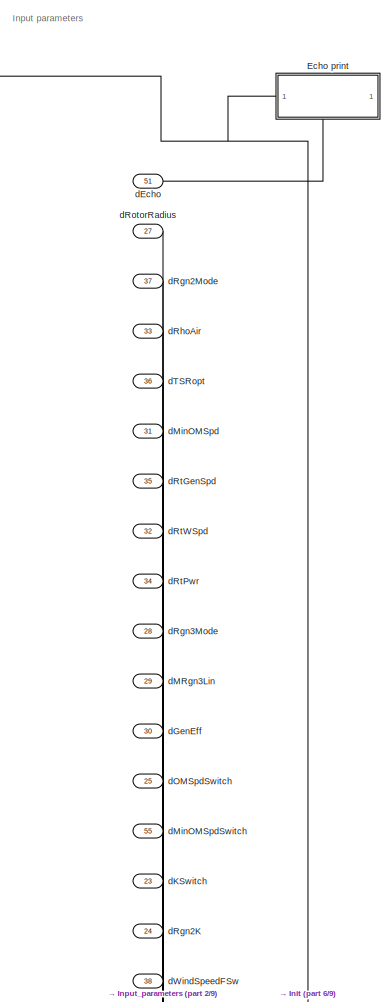
[diagram: root canvas - part 1/9, top left region]
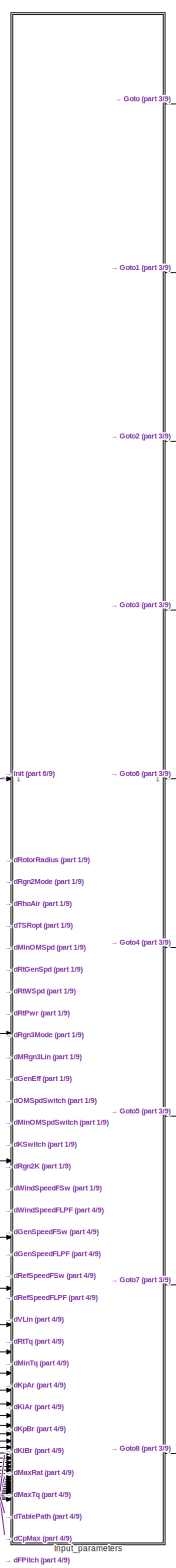
[diagram: root canvas - part 2/9, top left region]
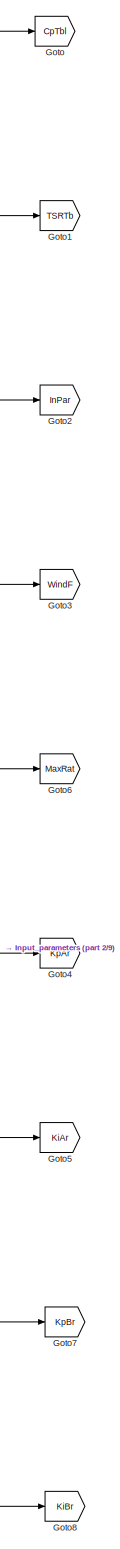
[diagram: root canvas - part 3/9, top center region]
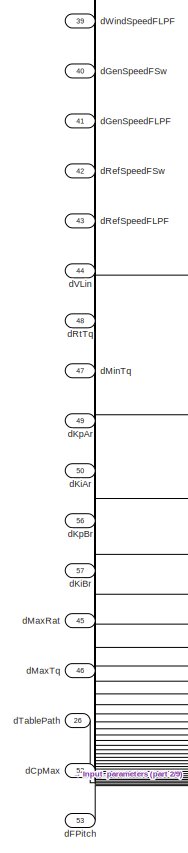
[diagram: root canvas - part 4/9, middle left region]
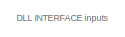
[diagram: root canvas - part 5/9, middle left region]
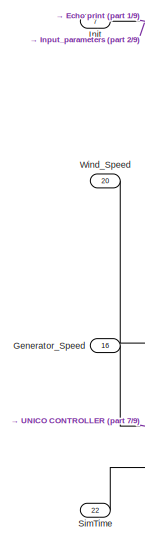
[diagram: root canvas - part 6/9, middle left region]
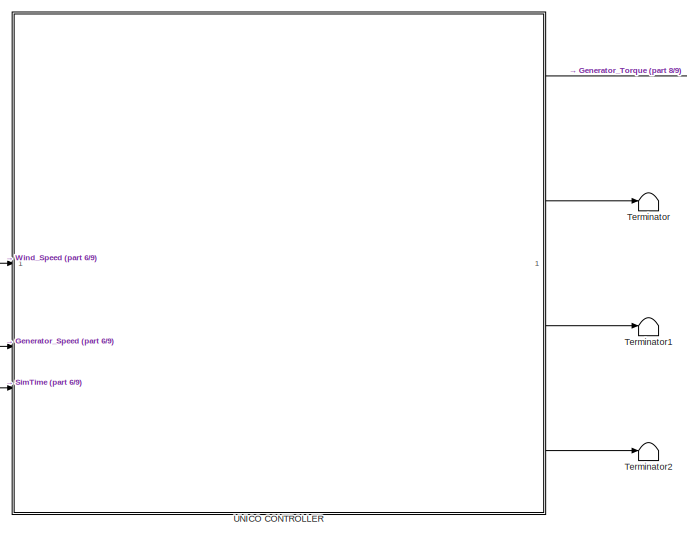
[diagram: root canvas - part 7/9, central region]
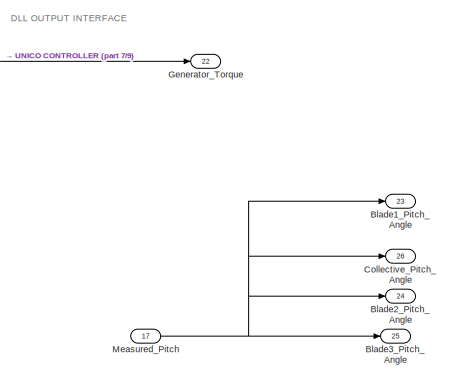
[diagram: root canvas - part 8/9, central region]
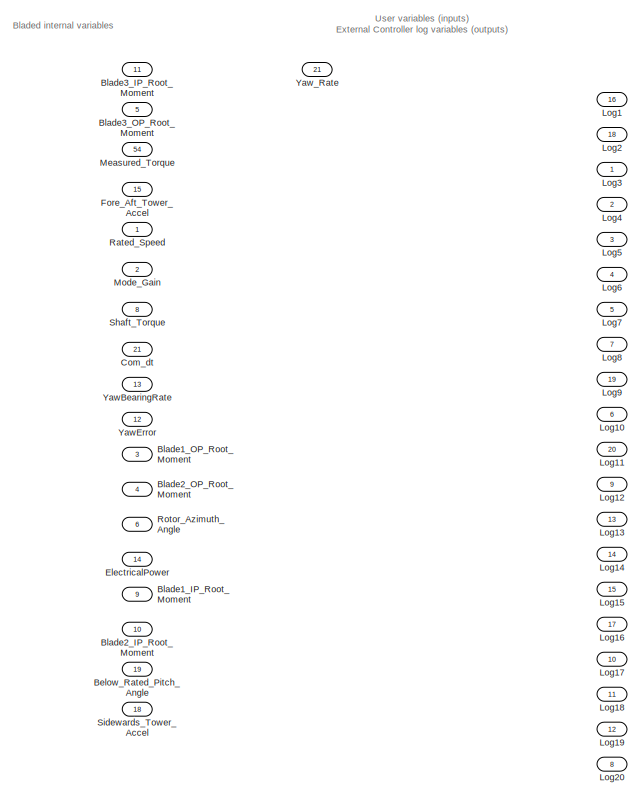
[diagram: root canvas - part 9/9, bottom right region]
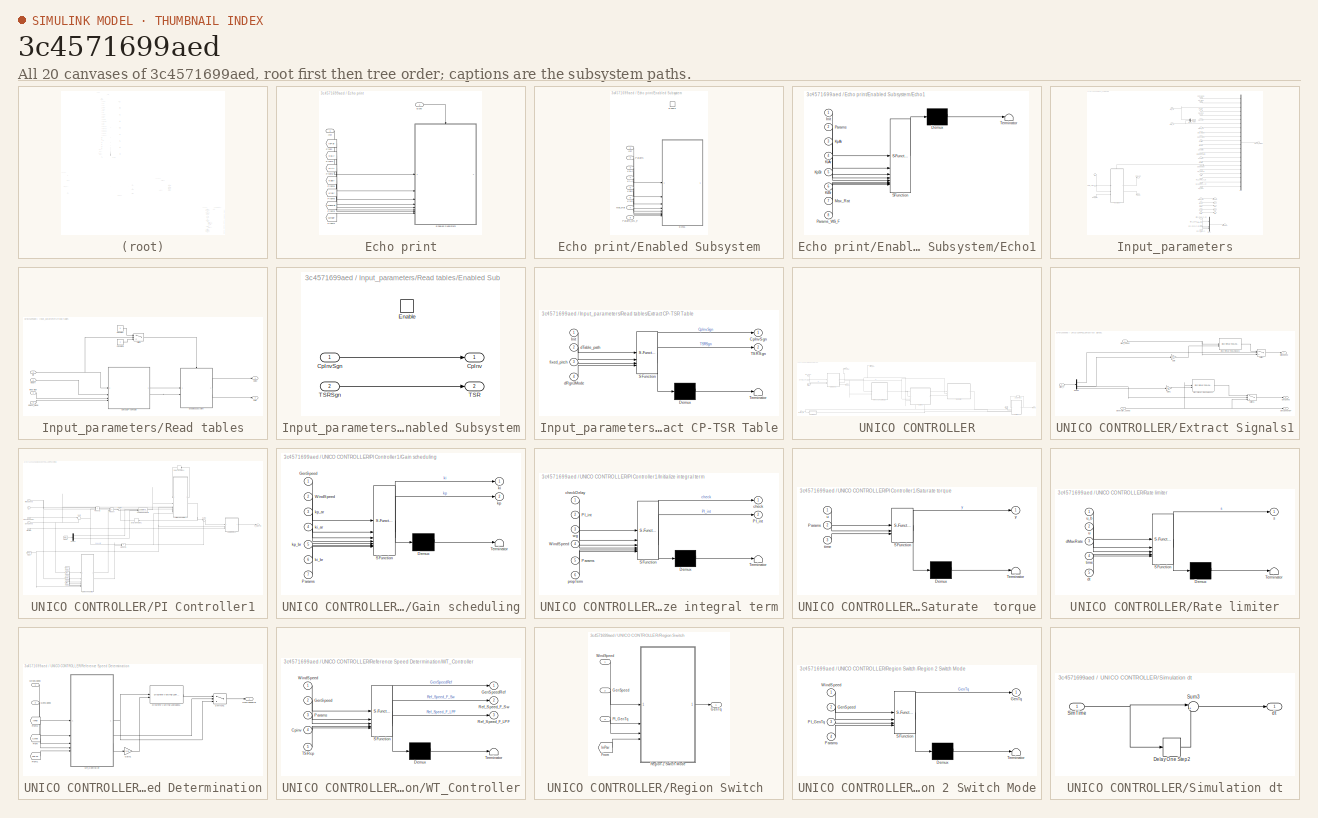
[diagram: thumbnail index - all 20 canvases of the model, root first then tree order]
MODEL slx_3c4571699aed
KIND model
CONFIG AbsTol = auto
CONFIG EnableMultiTasking = off
CONFIG FixedStep = Control.DT
CONFIG MaxStep = auto
CONFIG MinStep = auto
CONFIG RelTol = 1e-3
CONFIG SampleTimeConstraint = Unconstrained
CONFIG SolverName = FixedStepDiscrete
CONFIG StartTime = 0.0
CONFIG StopTime = inf
BLOCK [Inport] Below_Rated_Pitch_Angle
  Port = 19
  PortDimensions = 1
  SignalType = real
BLOCK [Inport] Blade1_IP_Root_Moment
  Port = 9
  PortDimensions = 1
  SignalType = real
  VarSizeSig = No
BLOCK [Inport] Blade1_OP_Root_Moment
  Port = 3
  PortDimensions = 1
  SignalType = real
  VarSizeSig = No
BLOCK [Outport] Blade1_Pitch_Angle
  Port = 23
  PortDimensions = 1
  SignalType = real
  VarSizeSig = No
  VectorParamsAs1DForOutWhenUnconnected = off
BLOCK [Inport] Blade2_IP_Root_Moment
  Port = 10
  PortDimensions = 1
  SignalType = real
  VarSizeSig = No
BLOCK [Inport] Blade2_OP_Root_Moment
  Port = 4
  PortDimensions = 1
  SignalType = real
  VarSizeSig = No
BLOCK [Outport] Blade2_Pitch_Angle
  Port = 24
  PortDimensions = 1
  SignalType = real
  VarSizeSig = No
  VectorParamsAs1DForOutWhenUnconnected = off
BLOCK [Inport] Blade3_IP_Root_Moment
  Port = 11
  PortDimensions = 1
  SignalType = real
  VarSizeSig = No
BLOCK [Inport] Blade3_OP_Root_Moment
  Port = 5
  PortDimensions = 1
  SignalType = real
  VarSizeSig = No
BLOCK [Outport] Blade3_Pitch_Angle
  Port = 25
  PortDimensions = 1
  SignalType = real
  VarSizeSig = No
  VectorParamsAs1DForOutWhenUnconnected = off
BLOCK [Outport] Collective_Pitch_Angle
  Port = 26
  PortDimensions = 1
  SignalType = real
  VarSizeSig = No
  VectorParamsAs1DForOutWhenUnconnected = off
BLOCK [Inport] Com_dt
  Port = 21
  PortDimensions = 1
  SignalType = real
BLOCK [SubSystem] Echo print
  NameLocation = top
  PortSchema = {"entries":[{"content":{"sides":[{"content":{"connectorIds":["In1"]},"type":"ConnectorPlacement.EquallySpacedRectSide","uuid":"a7404841-4279-4901-8e4b-4d9f651fd70d"},{"content":{"side":"RIGHT"},"type":"ConnectorPlacement.EquallySpacedRectSide","uuid":"c083252d-994d-448b-85dd-b05fa098362a"},{"content":{"connectorIds":["In2"],"side":"TOP"},"type":"ConnectorPlacement.EquallySpacedRectSide","uuid":"21...<+221ch>
BLOCK [Inport] Echo print/Echo
  Port = 2
BLOCK [SubSystem] Echo print/Enabled Subsystem
  LibrarySourceBlock = hdlsllib/Ports &\nSubsystems/Enabled\nSubsystem
  TreatAsAtomicUnit = on
BLOCK [SubSystem] Echo print/Enabled Subsystem/Echo1
  ErrorFcn = Stateflow.Translate.translate
  LibrarySourceBlock = simulink/User-Defined\nFunctions/MATLAB Function
  PermitHierarchicalResolution = ExplicitOnly
  SFBlockType = MATLAB Function
  TreatAsAtomicUnit = on
BLOCK [Demux] Echo print/Enabled Subsystem/Echo1/ Demux 
  Outputs = 1
BLOCK [S-Function] Echo print/Enabled Subsystem/Echo1/ SFunction 
  EnableBusSupport = on
  FunctionName = sf_sfun
  PortCounts = [8 1]
  SFcnIsStateOwnerBlock = off
  SFunctionDeploymentMode = off
  Tag = Stateflow S-Function 8
BLOCK [Terminator] Echo print/Enabled Subsystem/Echo1/ Terminator 
BLOCK [Inport] Echo print/Enabled Subsystem/Echo1/Init
BLOCK [Inport] Echo print/Enabled Subsystem/Echo1/KiAr
  Port = 4
BLOCK [Inport] Echo print/Enabled Subsystem/Echo1/KiBr
  Port = 6
BLOCK [Inport] Echo print/Enabled Subsystem/Echo1/KpAr
  Port = 3
BLOCK [Inport] Echo print/Enabled Subsystem/Echo1/KpBr
  Port = 5
BLOCK [Inport] Echo print/Enabled Subsystem/Echo1/Max_Rat
  Port = 7
BLOCK [Inport] Echo print/Enabled Subsystem/Echo1/Params
  Port = 2
BLOCK [Inport] Echo print/Enabled Subsystem/Echo1/Params_WS_F
  Port = 8
BLOCK [EnablePort] Echo print/Enabled Subsystem/Enable
BLOCK [Inport] Echo print/Enabled Subsystem/Init
BLOCK [Inport] Echo print/Enabled Subsystem/KiAr
  Port = 4
BLOCK [Inport] Echo print/Enabled Subsystem/KiBr
  Port = 6
BLOCK [Inport] Echo print/Enabled Subsystem/KpAr
  Port = 3
BLOCK [Inport] Echo print/Enabled Subsystem/KpBr
  Port = 5
BLOCK [Inport] Echo print/Enabled Subsystem/Max_Rat
  Port = 7
BLOCK [Inport] Echo print/Enabled Subsystem/Params
  Port = 2
BLOCK [Inport] Echo print/Enabled Subsystem/Params_WS_F
  Port = 8
BLOCK [From] Echo print/From
  GotoTag = InPar
  TagVisibility = global
BLOCK [From] Echo print/From1
  GotoTag = KpAr
  TagVisibility = global
BLOCK [From] Echo print/From2
  GotoTag = KiAr
  TagVisibility = global
BLOCK [From] Echo print/From3
  GotoTag = MaxRat
  TagVisibility = global
BLOCK [From] Echo print/From4
  GotoTag = WindF
  TagVisibility = global
BLOCK [From] Echo print/From5
  GotoTag = KpBr
  TagVisibility = global
BLOCK [From] Echo print/From6
  GotoTag = KiBr
  TagVisibility = global
BLOCK [Inport] Echo print/Init
BLOCK [Inport] ElectricalPower
  Port = 14
  PortDimensions = 1
  SignalType = real
BLOCK [Inport] Fore_Aft_Tower_Accel
  Port = 15
  PortDimensions = 1
  SignalType = real
BLOCK [Inport] Generator_Speed
  Port = 16
  PortDimensions = 1
  SignalType = real
BLOCK [Outport] Generator_Torque
  Port = 22
  PortDimensions = 1
  SignalType = real
  VectorParamsAs1DForOutWhenUnconnected = off
BLOCK [Goto] Goto
  GotoTag = CpTbl
  TagVisibility = global
BLOCK [Goto] Goto1
  GotoTag = TSRTb
  TagVisibility = global
BLOCK [Goto] Goto2
  GotoTag = InPar
  TagVisibility = global
BLOCK [Goto] Goto3
  GotoTag = WindF
  TagVisibility = global
BLOCK [Goto] Goto4
  GotoTag = KpAr
  TagVisibility = global
BLOCK [Goto] Goto5
  GotoTag = KiAr
  TagVisibility = global
BLOCK [Goto] Goto6
  GotoTag = MaxRat
  TagVisibility = global
BLOCK [Goto] Goto7
  GotoTag = KpBr
  TagVisibility = global
BLOCK [Goto] Goto8
  GotoTag = KiBr
  TagVisibility = global
BLOCK [Inport] Init
  Port = 7
  PortDimensions = 1
  SignalType = real
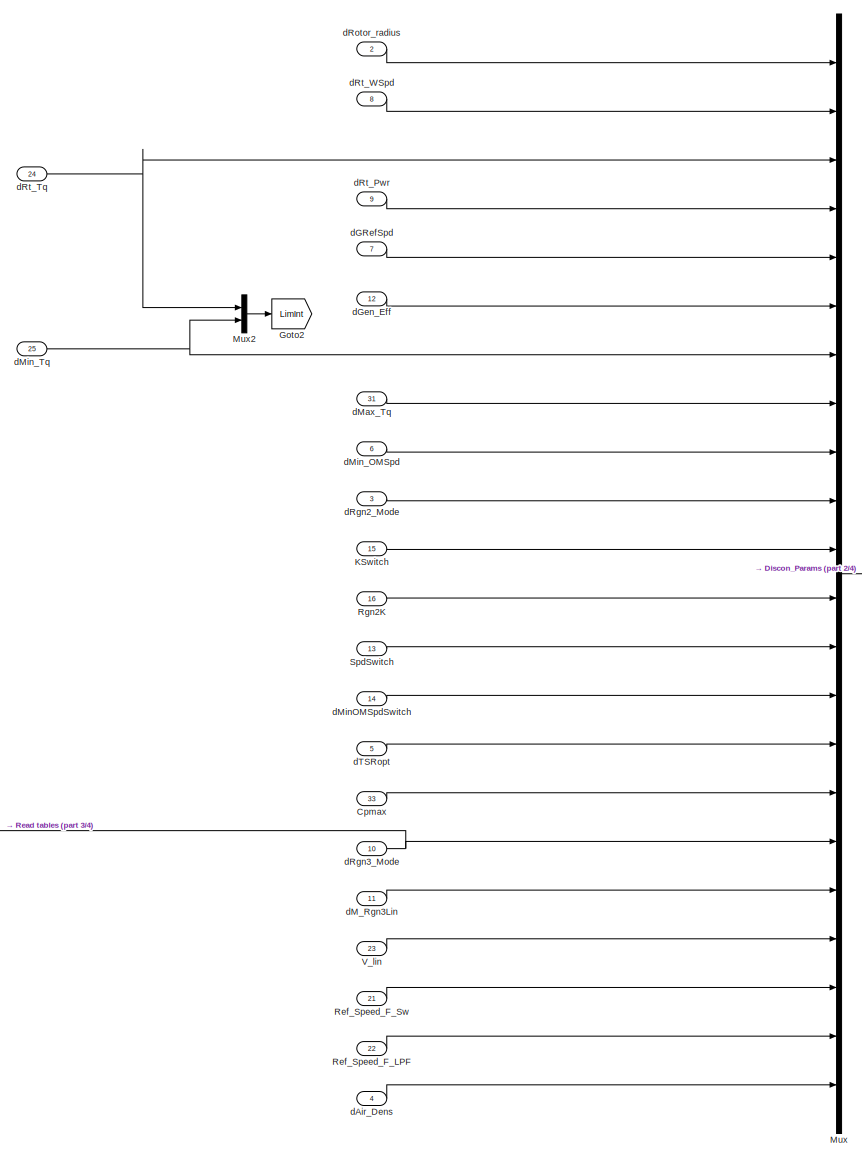
[diagram: Input_parameters - part 1/4, middle right region]
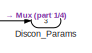
[diagram: Input_parameters - part 2/4, middle right region]
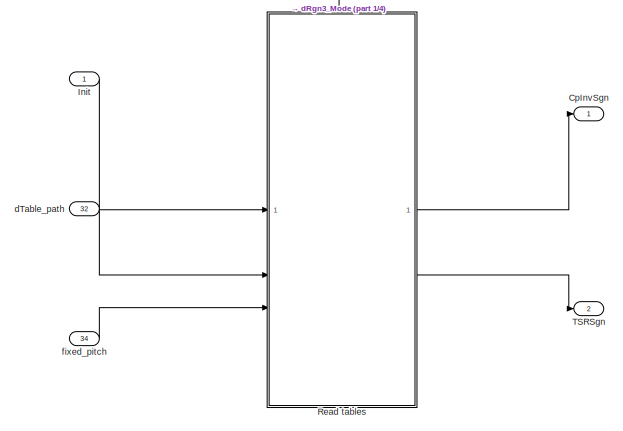
[diagram: Input_parameters - part 3/4, middle left region]
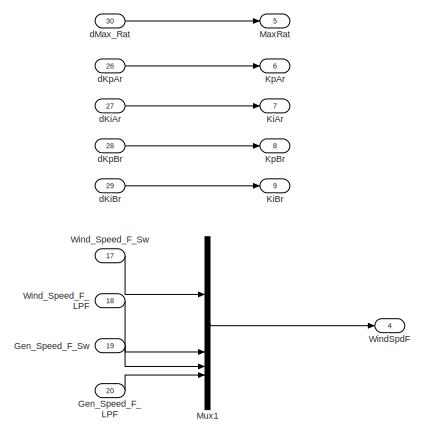
[diagram: Input_parameters - part 4/4, bottom right region]
BLOCK [SubSystem] Input_parameters
BLOCK [Outport] Input_parameters/CpInvSgn
BLOCK [Inport] Input_parameters/Cpmax
  Port = 33
BLOCK [Outport] Input_parameters/Discon_Params
  Port = 3
BLOCK [Inport] Input_parameters/Gen_Speed_F_LPF
  Port = 20
BLOCK [Inport] Input_parameters/Gen_Speed_F_Sw
  Port = 19
BLOCK [Goto] Input_parameters/Goto2
  GotoTag = LimInt
  TagVisibility = global
BLOCK [Inport] Input_parameters/Init
BLOCK [Inport] Input_parameters/KSwitch
  Port = 15
BLOCK [Outport] Input_parameters/KiAr
  Port = 7
BLOCK [Outport] Input_parameters/KiBr
  Port = 9
BLOCK [Outport] Input_parameters/KpAr
  Port = 6
BLOCK [Outport] Input_parameters/KpBr
  Port = 8
BLOCK [Outport] Input_parameters/MaxRat
  Port = 5
BLOCK [Mux] Input_parameters/Mux
  DisplayOption = bar
  Inputs = 22
BLOCK [Mux] Input_parameters/Mux1
  DisplayOption = bar
BLOCK [Mux] Input_parameters/Mux2
  DisplayOption = bar
  Inputs = 2
BLOCK [SubSystem] Input_parameters/Read tables
  LibrarySourceBlock = hdlsllib/Ports &\nSubsystems/Enabled\nSubsystem
  PortSchema = {"entries":[{"content":{"sides":[{"content":{"connectorIds":["In1","In2","In3"]},"type":"ConnectorPlacement.EquallySpacedRectSide","uuid":"70dc056e-f44f-410f-81b8-4fc8ee875686"},{"content":{"connectorIds":["Out1","Out2"],"side":"RIGHT"},"type":"ConnectorPlacement.EquallySpacedRectSide","uuid":"c55ab53e-c552-464c-9578-781d0167a6cb"},{"content":{"connectorIds":["In4"],"side":"TOP"},"type":"Connector...<+264ch>
  TreatAsAtomicUnit = on
BLOCK [Constant] Input_parameters/Read tables/Constant
  Value = 0
BLOCK [Constant] Input_parameters/Read tables/Constant1
  SampleTime = -1
BLOCK [Outport] Input_parameters/Read tables/CpInv
BLOCK [SubSystem] Input_parameters/Read tables/Enabled Subsystem
  LibrarySourceBlock = hdlsllib/Ports &\nSubsystems/Enabled\nSubsystem
  TreatAsAtomicUnit = on
BLOCK [Outport] Input_parameters/Read tables/Enabled Subsystem/CpInv
BLOCK [Inport] Input_parameters/Read tables/Enabled Subsystem/CpInvSgn
BLOCK [EnablePort] Input_parameters/Read tables/Enabled Subsystem/Enable
BLOCK [Outport] Input_parameters/Read tables/Enabled Subsystem/TSR
  Port = 2
BLOCK [Inport] Input_parameters/Read tables/Enabled Subsystem/TSRSgn
  Port = 2
BLOCK [SubSystem] Input_parameters/Read tables/Extract CP-TSR Table
  ErrorFcn = Stateflow.Translate.translate
  LibrarySourceBlock = simulink/User-Defined\nFunctions/MATLAB Function
  PermitHierarchicalResolution = ExplicitOnly
  SFBlockType = MATLAB Function
  TreatAsAtomicUnit = on
BLOCK [Demux] Input_parameters/Read tables/Extract CP-TSR Table/ Demux 
  Outputs = 1
BLOCK [S-Function] Input_parameters/Read tables/Extract CP-TSR Table/ SFunction 
  EnableBusSupport = on
  FunctionName = sf_sfun
  PortCounts = [4 3]
  SFcnIsStateOwnerBlock = off
  SFunctionDeploymentMode = off
  Tag = Stateflow S-Function 12
BLOCK [Terminator] Input_parameters/Read tables/Extract CP-TSR Table/ Terminator 
BLOCK [Outport] Input_parameters/Read tables/Extract CP-TSR Table/CpInvSgn
BLOCK [Inport] Input_parameters/Read tables/Extract CP-TSR Table/Init
BLOCK [Outport] Input_parameters/Read tables/Extract CP-TSR Table/TSRSgn
  Port = 2
BLOCK [Inport] Input_parameters/Read tables/Extract CP-TSR Table/dRgn3Mode
  Port = 4
BLOCK [Inport] Input_parameters/Read tables/Extract CP-TSR Table/dTable_path
  Port = 2
BLOCK [Inport] Input_parameters/Read tables/Extract CP-TSR Table/fixed_pitch
  Port = 3
BLOCK [Inport] Input_parameters/Read tables/Init
BLOCK [Inport] Input_parameters/Read tables/Inport
  Port = 2
BLOCK [Switch] Input_parameters/Read tables/Switch
  Criteria = u2 ~= 0
  InputSameDT = off
  SaturateOnIntegerOverflow = off
BLOCK [Outport] Input_parameters/Read tables/TSR
  Port = 2
BLOCK [Inport] Input_parameters/Read tables/dRgn3_Mode
  Port = 4
BLOCK [Inport] Input_parameters/Read tables/fixed-pitch
  Port = 3
BLOCK [Inport] Input_parameters/Ref_Speed_F_LPF
  Port = 22
BLOCK [Inport] Input_parameters/Ref_Speed_F_Sw
  Port = 21
BLOCK [Inport] Input_parameters/Rgn2K
  Port = 16
BLOCK [Inport] Input_parameters/SpdSwitch
  Port = 13
BLOCK [Outport] Input_parameters/TSRSgn
  Port = 2
BLOCK [Inport] Input_parameters/V_lin
  Port = 23
BLOCK [Outport] Input_parameters/WindSpdF
  Port = 4
BLOCK [Inport] Input_parameters/Wind_Speed_F_LPF
  Port = 18
BLOCK [Inport] Input_parameters/Wind_Speed_F_Sw
  Port = 17
BLOCK [Inport] Input_parameters/dAir_Dens
  Port = 4
BLOCK [Inport] Input_parameters/dGRefSpd
  Port = 7
BLOCK [Inport] Input_parameters/dGen_Eff
  Port = 12
BLOCK [Inport] Input_parameters/dKiAr
  Port = 27
BLOCK [Inport] Input_parameters/dKiBr
  Port = 29
BLOCK [Inport] Input_parameters/dKpAr
  Port = 26
BLOCK [Inport] Input_parameters/dKpBr
  Port = 28
BLOCK [Inport] Input_parameters/dM_Rgn3Lin
  Port = 11
BLOCK [Inport] Input_parameters/dMax_Rat
  Port = 30
BLOCK [Inport] Input_parameters/dMax_Tq
  Port = 31
BLOCK [Inport] Input_parameters/dMinOMSpdSwitch
  Port = 14
BLOCK [Inport] Input_parameters/dMin_OMSpd
  Port = 6
BLOCK [Inport] Input_parameters/dMin_Tq
  Port = 25
BLOCK [Inport] Input_parameters/dRgn2_Mode
  Port = 3
BLOCK [Inport] Input_parameters/dRgn3_Mode
  Port = 10
BLOCK [Inport] Input_parameters/dRotor_radius
  Port = 2
BLOCK [Inport] Input_parameters/dRt_Pwr
  Port = 9
BLOCK [Inport] Input_parameters/dRt_Tq
  Port = 24
BLOCK [Inport] Input_parameters/dRt_WSpd
  Port = 8
BLOCK [Inport] Input_parameters/dTSRopt
  Port = 5
BLOCK [Inport] Input_parameters/dTable_path
  Port = 32
BLOCK [Inport] Input_parameters/fixed_pitch
  Port = 34
BLOCK [Outport] Log1
  Port = 16
  PortDimensions = 1
  SignalType = real
  VarSizeSig = No
  VectorParamsAs1DForOutWhenUnconnected = off
BLOCK [Outport] Log10
  Port = 6
  PortDimensions = 1
  SignalType = real
  VarSizeSig = No
  VectorParamsAs1DForOutWhenUnconnected = off
BLOCK [Outport] Log11
  Port = 20
  PortDimensions = 1
  SignalType = real
  VarSizeSig = No
  VectorParamsAs1DForOutWhenUnconnected = off
BLOCK [Outport] Log12
  Port = 9
  PortDimensions = 1
  SignalType = real
  VarSizeSig = No
  VectorParamsAs1DForOutWhenUnconnected = off
BLOCK [Outport] Log13
  Port = 13
  PortDimensions = 1
  SignalType = real
  VarSizeSig = No
  VectorParamsAs1DForOutWhenUnconnected = off
BLOCK [Outport] Log14
  Port = 14
  PortDimensions = 1
  SignalType = real
  VarSizeSig = No
  VectorParamsAs1DForOutWhenUnconnected = off
BLOCK [Outport] Log15
  Port = 15
  PortDimensions = 1
  SignalType = real
  VarSizeSig = No
  VectorParamsAs1DForOutWhenUnconnected = off
BLOCK [Outport] Log16
  Port = 17
  PortDimensions = 1
  SignalType = real
  VarSizeSig = No
  VectorParamsAs1DForOutWhenUnconnected = off
BLOCK [Outport] Log17
  Port = 10
  PortDimensions = 1
  SignalType = real
  VarSizeSig = No
  VectorParamsAs1DForOutWhenUnconnected = off
BLOCK [Outport] Log18
  Port = 11
  PortDimensions = 1
  SignalType = real
  VarSizeSig = No
  VectorParamsAs1DForOutWhenUnconnected = off
BLOCK [Outport] Log19
  Port = 12
  PortDimensions = 1
  SignalType = real
  VarSizeSig = No
  VectorParamsAs1DForOutWhenUnconnected = off
BLOCK [Outport] Log2
  Port = 18
  PortDimensions = 1
  SignalType = real
  VarSizeSig = No
  VectorParamsAs1DForOutWhenUnconnected = off
BLOCK [Outport] Log20
  Port = 8
  PortDimensions = 1
  SignalType = real
  VarSizeSig = No
  VectorParamsAs1DForOutWhenUnconnected = off
BLOCK [Outport] Log3
  PortDimensions = 1
  SignalType = real
  VarSizeSig = No
  VectorParamsAs1DForOutWhenUnconnected = off
BLOCK [Outport] Log4
  Port = 2
  PortDimensions = 1
  SignalType = real
  VarSizeSig = No
  VectorParamsAs1DForOutWhenUnconnected = off
BLOCK [Outport] Log5
  Port = 3
  PortDimensions = 1
  SignalType = real
  VarSizeSig = No
  VectorParamsAs1DForOutWhenUnconnected = off
BLOCK [Outport] Log6
  Port = 4
  PortDimensions = 1
  SignalType = real
  VarSizeSig = No
  VectorParamsAs1DForOutWhenUnconnected = off
BLOCK [Outport] Log7
  Port = 5
  PortDimensions = 1
  SignalType = real
  VarSizeSig = No
  VectorParamsAs1DForOutWhenUnconnected = off
BLOCK [Outport] Log8
  Port = 7
  PortDimensions = 1
  SignalType = real
  VarSizeSig = No
  VectorParamsAs1DForOutWhenUnconnected = off
BLOCK [Outport] Log9
  Port = 19
  PortDimensions = 1
  SignalType = real
  VarSizeSig = No
  VectorParamsAs1DForOutWhenUnconnected = off
BLOCK [Inport] Measured_Pitch
  Port = 17
  PortDimensions = 1
  SignalType = real
BLOCK [Inport] Measured_Torque
  Port = 54
BLOCK [Inport] Mode_Gain
  Port = 2
  PortDimensions = 1
  SignalType = real
BLOCK [Inport] Rated_Speed
  PortDimensions = 1
  SignalType = real
BLOCK [Inport] Rotor_Azimuth_Angle
  Port = 6
  PortDimensions = 1
  SignalType = real
  VarSizeSig = No
BLOCK [Inport] Shaft_Torque
  Port = 8
  PortDimensions = 1
  SignalType = real
BLOCK [Inport] Sidewards_Tower_Accel
  Port = 18
  PortDimensions = 1
  SignalType = real
BLOCK [Inport] SimTime
  Port = 22
BLOCK [Terminator] Terminator
BLOCK [Terminator] Terminator1
BLOCK [Terminator] Terminator2
BLOCK [SubSystem] UNICO CONTROLLER
BLOCK [Delay] UNICO CONTROLLER/Delay One Step3
  DelayLength = 1
  InputPortMap = u0
BLOCK [SubSystem] UNICO CONTROLLER/Extract Signals1
  TreatAsAtomicUnit = on
BLOCK [Demux] UNICO CONTROLLER/Extract Signals1/Demux
BLOCK [Reference] UNICO CONTROLLER/Extract Signals1/Discrete Varying Lowpass  REF=cstblocks/Linear Parameter Varying/Discrete Varying Lowpass
  SourceBlock = cstblocks/Linear Parameter Varying/Discrete Varying Lowpass
  SourceType = Discrete Varying Lowpass
BLOCK [Reference] UNICO CONTROLLER/Extract Signals1/Discrete Varying Lowpass1  REF=cstblocks/Linear Parameter Varying/Discrete Varying Lowpass
  SourceBlock = cstblocks/Linear Parameter Varying/Discrete Varying Lowpass
  SourceType = Discrete Varying Lowpass
BLOCK [Gain] UNICO CONTROLLER/Extract Signals1/Gain
  Gain = 2*pi
BLOCK [Gain] UNICO CONTROLLER/Extract Signals1/Gain1
  Gain = 2*pi
BLOCK [Outport] UNICO CONTROLLER/Extract Signals1/GenSpeed
  Port = 2
  VectorParamsAs1DForOutWhenUnconnected = off
BLOCK [Outport] UNICO CONTROLLER/Extract Signals1/GenSpeedNoF
  Port = 3
BLOCK [Inport] UNICO CONTROLLER/Extract Signals1/Generator_speed
  Port = 2
BLOCK [Switch] UNICO CONTROLLER/Extract Signals1/Switch
  Criteria = u2 ~= 0
  InputSameDT = off
  SaturateOnIntegerOverflow = off
BLOCK [Switch] UNICO CONTROLLER/Extract Signals1/Switch1
  Criteria = u2 ~= 0
  InputSameDT = off
  SaturateOnIntegerOverflow = off
BLOCK [Outport] UNICO CONTROLLER/Extract Signals1/WindSpeed
  VectorParamsAs1DForOutWhenUnconnected = off
BLOCK [Inport] UNICO CONTROLLER/Extract Signals1/Wind_F
  Port = 3
BLOCK [Inport] UNICO CONTROLLER/Extract Signals1/Wind_speed
BLOCK [From] UNICO CONTROLLER/From
  GotoTag = MaxRat
  TagVisibility = global
BLOCK [From] UNICO CONTROLLER/From1
  GotoTag = WindF
  TagVisibility = global
BLOCK [Outport] UNICO CONTROLLER/GenSpd
  Port = 2
BLOCK [Outport] UNICO CONTROLLER/GenTq
BLOCK [Outport] UNICO CONTROLLER/Gen_speedF
  Port = 4
BLOCK [Inport] UNICO CONTROLLER/Generator_speed
  Port = 2
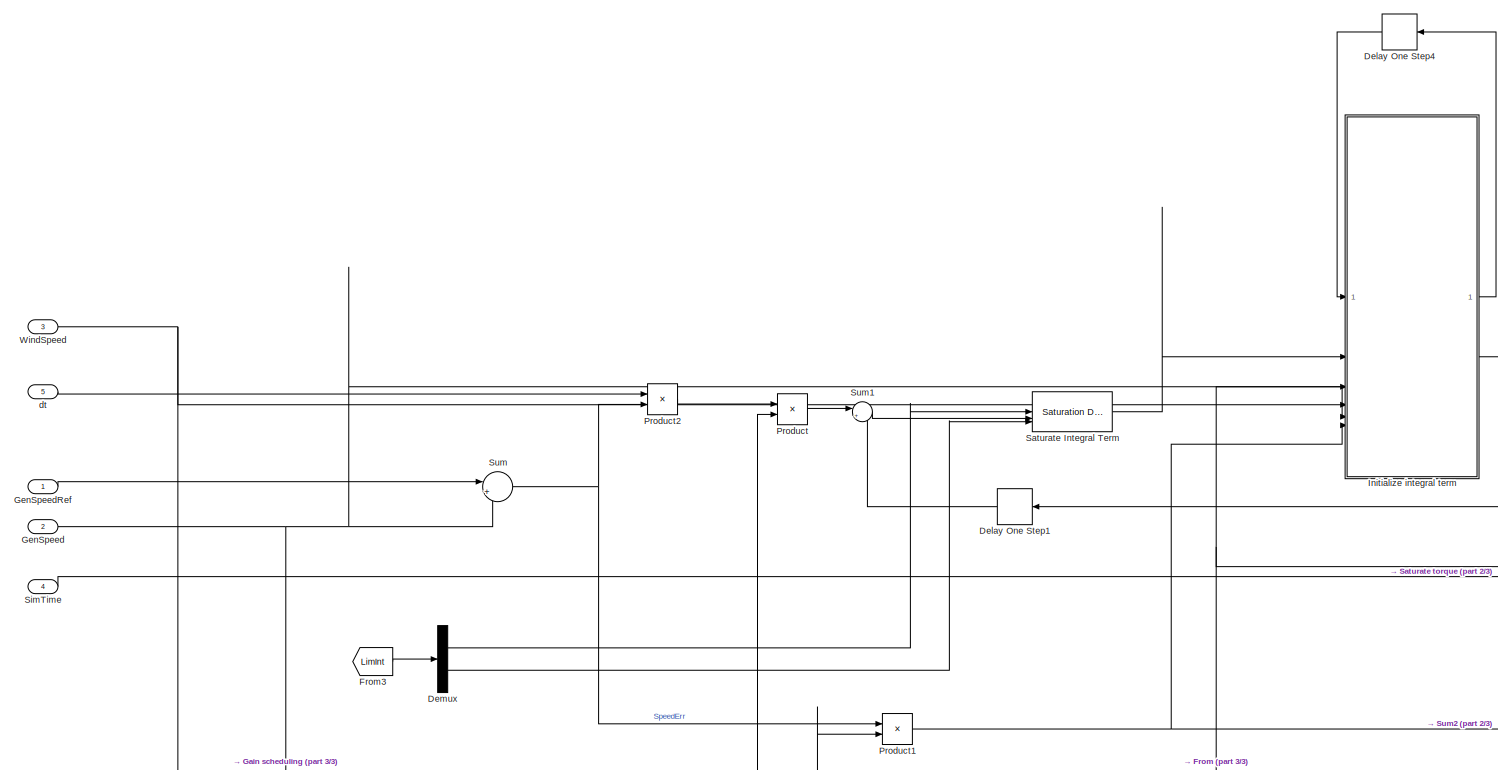
[diagram: UNICO CONTROLLER/PI Controller1 - part 1/3, central region]
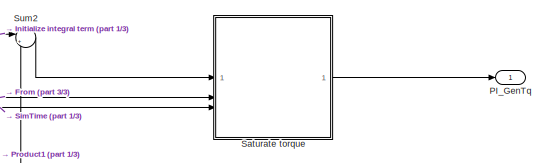
[diagram: UNICO CONTROLLER/PI Controller1 - part 2/3, middle right region]
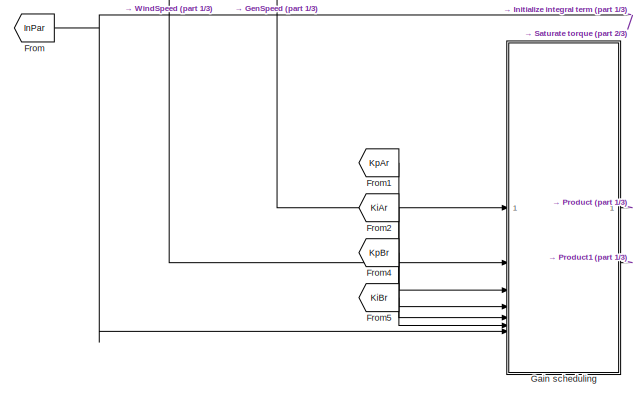
[diagram: UNICO CONTROLLER/PI Controller1 - part 3/3, bottom left region]
BLOCK [SubSystem] UNICO CONTROLLER/PI Controller1
  PortSchema = {"entries":[{"content":{"sides":[{"content":{"connectorIds":["In1","In2","In3"]},"type":"ConnectorPlacement.EquallySpacedRectSide","uuid":"bcfbec15-b5a6-4167-802a-412b097f843a"},{"content":{"connectorIds":["Out1"],"side":"RIGHT"},"type":"ConnectorPlacement.EquallySpacedRectSide","uuid":"a1a0e280-ec2e-4521-b7c2-616f76855769"},{"content":{"side":"TOP"},"type":"ConnectorPlacement.EquallySpacedRectSid...<+389ch>
BLOCK [Delay] UNICO CONTROLLER/PI Controller1/Delay One Step1
  DelayLength = 1
  InputPortMap = u0
BLOCK [Delay] UNICO CONTROLLER/PI Controller1/Delay One Step4
  DelayLength = 1
  InputPortMap = u0
BLOCK [Demux] UNICO CONTROLLER/PI Controller1/Demux
  Outputs = 2
BLOCK [From] UNICO CONTROLLER/PI Controller1/From
  GotoTag = InPar
  TagVisibility = global
BLOCK [From] UNICO CONTROLLER/PI Controller1/From1
  GotoTag = KpAr
  TagVisibility = global
BLOCK [From] UNICO CONTROLLER/PI Controller1/From2
  GotoTag = KiAr
  TagVisibility = global
BLOCK [From] UNICO CONTROLLER/PI Controller1/From3
  GotoTag = LimInt
  TagVisibility = global
BLOCK [From] UNICO CONTROLLER/PI Controller1/From4
  GotoTag = KpBr
  TagVisibility = global
BLOCK [From] UNICO CONTROLLER/PI Controller1/From5
  GotoTag = KiBr
  TagVisibility = global
BLOCK [SubSystem] UNICO CONTROLLER/PI Controller1/Gain scheduling
  ErrorFcn = Stateflow.Translate.translate
  LibrarySourceBlock = simulink/User-Defined\nFunctions/MATLAB Function
  PermitHierarchicalResolution = ExplicitOnly
  SFBlockType = MATLAB Function
  TreatAsAtomicUnit = on
BLOCK [Demux] UNICO CONTROLLER/PI Controller1/Gain scheduling/ Demux 
  Outputs = 1
BLOCK [S-Function] UNICO CONTROLLER/PI Controller1/Gain scheduling/ SFunction 
  EnableBusSupport = on
  FunctionName = sf_sfun
  PortCounts = [7 3]
  SFcnIsStateOwnerBlock = off
  SFunctionDeploymentMode = off
  Tag = Stateflow S-Function 1
BLOCK [Terminator] UNICO CONTROLLER/PI Controller1/Gain scheduling/ Terminator 
BLOCK [Inport] UNICO CONTROLLER/PI Controller1/Gain scheduling/GenSpeed
BLOCK [Inport] UNICO CONTROLLER/PI Controller1/Gain scheduling/Params
  Port = 7
BLOCK [Inport] UNICO CONTROLLER/PI Controller1/Gain scheduling/WindSpeed
  Port = 2
BLOCK [Outport] UNICO CONTROLLER/PI Controller1/Gain scheduling/ki
BLOCK [Inport] UNICO CONTROLLER/PI Controller1/Gain scheduling/ki_ar
  Port = 4
BLOCK [Inport] UNICO CONTROLLER/PI Controller1/Gain scheduling/ki_br
  Port = 6
BLOCK [Outport] UNICO CONTROLLER/PI Controller1/Gain scheduling/kp
  Port = 2
BLOCK [Inport] UNICO CONTROLLER/PI Controller1/Gain scheduling/kp_ar
  Port = 3
BLOCK [Inport] UNICO CONTROLLER/PI Controller1/Gain scheduling/kp_br
  Port = 5
BLOCK [Inport] UNICO CONTROLLER/PI Controller1/GenSpeed
  Port = 2
BLOCK [Inport] UNICO CONTROLLER/PI Controller1/GenSpeedRef
BLOCK [SubSystem] UNICO CONTROLLER/PI Controller1/Initialize integral term
  ErrorFcn = Stateflow.Translate.translate
  LibrarySourceBlock = simulink/User-Defined\nFunctions/MATLAB Function
  PermitHierarchicalResolution = ExplicitOnly
  SFBlockType = MATLAB Function
  TreatAsAtomicUnit = on
BLOCK [Demux] UNICO CONTROLLER/PI Controller1/Initialize integral term/ Demux 
  Outputs = 1
BLOCK [S-Function] UNICO CONTROLLER/PI Controller1/Initialize integral term/ SFunction 
  EnableBusSupport = on
  FunctionName = sf_sfun
  PortCounts = [6 3]
  SFcnIsStateOwnerBlock = off
  SFunctionDeploymentMode = off
  Tag = Stateflow S-Function 3
BLOCK [Terminator] UNICO CONTROLLER/PI Controller1/Initialize integral term/ Terminator 
BLOCK [Outport] UNICO CONTROLLER/PI Controller1/Initialize integral term/PI_int
  Port = 2
BLOCK [Inport] UNICO CONTROLLER/PI Controller1/Initialize integral term/PI_int 
  Port = 2
BLOCK [Inport] UNICO CONTROLLER/PI Controller1/Initialize integral term/Params
  Port = 5
BLOCK [Inport] UNICO CONTROLLER/PI Controller1/Initialize integral term/WindSpeed
  Port = 4
BLOCK [Outport] UNICO CONTROLLER/PI Controller1/Initialize integral term/check
BLOCK [Inport] UNICO CONTROLLER/PI Controller1/Initialize integral term/checkDelay
BLOCK [Inport] UNICO CONTROLLER/PI Controller1/Initialize integral term/propTerm
  Port = 6
BLOCK [Inport] UNICO CONTROLLER/PI Controller1/Initialize integral term/wg
  Port = 3
BLOCK [Outport] UNICO CONTROLLER/PI Controller1/PI_GenTq
BLOCK [Product] UNICO CONTROLLER/PI Controller1/Product
BLOCK [Product] UNICO CONTROLLER/PI Controller1/Product1
BLOCK [Product] UNICO CONTROLLER/PI Controller1/Product2
BLOCK [SubSystem] UNICO CONTROLLER/PI Controller1/Saturate  torque
  ErrorFcn = Stateflow.Translate.translate
  LibrarySourceBlock = simulink/User-Defined\nFunctions/MATLAB Function
  PermitHierarchicalResolution = ExplicitOnly
  SFBlockType = MATLAB Function
  TreatAsAtomicUnit = on
BLOCK [Demux] UNICO CONTROLLER/PI Controller1/Saturate  torque/ Demux 
  Outputs = 1
BLOCK [S-Function] UNICO CONTROLLER/PI Controller1/Saturate  torque/ SFunction 
  EnableBusSupport = on
  FunctionName = sf_sfun
  PortCounts = [3 2]
  SFcnIsStateOwnerBlock = off
  SFunctionDeploymentMode = off
  Tag = Stateflow S-Function 4
BLOCK [Terminator] UNICO CONTROLLER/PI Controller1/Saturate  torque/ Terminator 
BLOCK [Inport] UNICO CONTROLLER/PI Controller1/Saturate  torque/Params
  Port = 2
BLOCK [Inport] UNICO CONTROLLER/PI Controller1/Saturate  torque/time
  Port = 3
BLOCK [Inport] UNICO CONTROLLER/PI Controller1/Saturate  torque/u
BLOCK [Outport] UNICO CONTROLLER/PI Controller1/Saturate  torque/y
BLOCK [Reference] UNICO CONTROLLER/PI Controller1/Saturate Integral Term  REF=simulink/Discontinuities/Saturation
Dynamic
  SourceBlock = simulink/Discontinuities/Saturation\nDynamic
  SourceType = Saturation Dynamic
BLOCK [Inport] UNICO CONTROLLER/PI Controller1/SimTime
  Port = 4
BLOCK [Sum] UNICO CONTROLLER/PI Controller1/Sum
  Inputs = |+-
BLOCK [Sum] UNICO CONTROLLER/PI Controller1/Sum1
  Inputs = |++
BLOCK [Sum] UNICO CONTROLLER/PI Controller1/Sum2
  Inputs = |++
BLOCK [Inport] UNICO CONTROLLER/PI Controller1/WindSpeed
  Port = 3
BLOCK [Inport] UNICO CONTROLLER/PI Controller1/dt
  Port = 5
BLOCK [SubSystem] UNICO CONTROLLER/Rate limiter
  ErrorFcn = Stateflow.Translate.translate
  LibrarySourceBlock = simulink/User-Defined\nFunctions/MATLAB Function
  PermitHierarchicalResolution = ExplicitOnly
  SFBlockType = MATLAB Function
  TreatAsAtomicUnit = on
BLOCK [Demux] UNICO CONTROLLER/Rate limiter/ Demux 
  Outputs = 1
BLOCK [S-Function] UNICO CONTROLLER/Rate limiter/ SFunction 
  EnableBusSupport = on
  FunctionName = sf_sfun
  PortCounts = [5 2]
  SFcnIsStateOwnerBlock = off
  SFunctionDeploymentMode = off
  Tag = Stateflow S-Function 5
BLOCK [Terminator] UNICO CONTROLLER/Rate limiter/ Terminator 
BLOCK [Inport] UNICO CONTROLLER/Rate limiter/dMaxRate
  Port = 3
BLOCK [Inport] UNICO CONTROLLER/Rate limiter/dt
  Port = 5
BLOCK [Outport] UNICO CONTROLLER/Rate limiter/s
BLOCK [Inport] UNICO CONTROLLER/Rate limiter/time
  Port = 4
BLOCK [Inport] UNICO CONTROLLER/Rate limiter/u
  Port = 2
BLOCK [Inport] UNICO CONTROLLER/Rate limiter/u_b
BLOCK [SubSystem] UNICO CONTROLLER/Reference Speed Determination
BLOCK [Reference] UNICO CONTROLLER/Reference Speed Determination/Discrete Varying Lowpass1  REF=cstblocks/Linear Parameter Varying/Discrete Varying Lowpass
  SourceBlock = cstblocks/Linear Parameter Varying/Discrete Varying Lowpass
  SourceType = Discrete Varying Lowpass
BLOCK [From] UNICO CONTROLLER/Reference Speed Determination/From
  GotoTag = CpTbl
  TagVisibility = global
BLOCK [From] UNICO CONTROLLER/Reference Speed Determination/From1
  GotoTag = TSRTb
  TagVisibility = global
BLOCK [From] UNICO CONTROLLER/Reference Speed Determination/From2
  GotoTag = InPar
  TagVisibility = global
BLOCK [Gain] UNICO CONTROLLER/Reference Speed Determination/Gain1
  Gain = 2*pi
BLOCK [Inport] UNICO CONTROLLER/Reference Speed Determination/GenSpeed
  Port = 2
BLOCK [Outport] UNICO CONTROLLER/Reference Speed Determination/GenSpeedRef
BLOCK [Switch] UNICO CONTROLLER/Reference Speed Determination/Switch1
  Criteria = u2 ~= 0
  InputSameDT = off
  SaturateOnIntegerOverflow = off
BLOCK [SubSystem] UNICO CONTROLLER/Reference Speed Determination/WT_Controller
  ErrorFcn = Stateflow.Translate.translate
  LibrarySourceBlock = simulink/User-Defined\nFunctions/MATLAB Function
  PermitHierarchicalResolution = ExplicitOnly
  SFBlockType = MATLAB Function
  TreatAsAtomicUnit = on
BLOCK [Demux] UNICO CONTROLLER/Reference Speed Determination/WT_Controller/ Demux 
  Outputs = 1
BLOCK [S-Function] UNICO CONTROLLER/Reference Speed Determination/WT_Controller/ SFunction 
  EnableBusSupport = on
  FunctionName = sf_sfun
  PortCounts = [5 4]
  SFcnIsStateOwnerBlock = off
  SFunctionDeploymentMode = off
  Tag = Stateflow S-Function 7
BLOCK [Terminator] UNICO CONTROLLER/Reference Speed Determination/WT_Controller/ Terminator 
BLOCK [Inport] UNICO CONTROLLER/Reference Speed Determination/WT_Controller/Cpinv
  Port = 4
BLOCK [Inport] UNICO CONTROLLER/Reference Speed Determination/WT_Controller/GenSpeed
  Port = 2
BLOCK [Outport] UNICO CONTROLLER/Reference Speed Determination/WT_Controller/GenSpeedRef
BLOCK [Inport] UNICO CONTROLLER/Reference Speed Determination/WT_Controller/Params
  Port = 3
BLOCK [Outport] UNICO CONTROLLER/Reference Speed Determination/WT_Controller/Ref_Speed_F_LPF
  Port = 3
BLOCK [Outport] UNICO CONTROLLER/Reference Speed Determination/WT_Controller/Ref_Speed_F_Sw
  Port = 2
BLOCK [Inport] UNICO CONTROLLER/Reference Speed Determination/WT_Controller/TSRcp
  Port = 5
BLOCK [Inport] UNICO CONTROLLER/Reference Speed Determination/WT_Controller/WindSpeed
BLOCK [Inport] UNICO CONTROLLER/Reference Speed Determination/WindSpeed
BLOCK [SubSystem] UNICO CONTROLLER/Region Switch 
BLOCK [From] UNICO CONTROLLER/Region Switch /From
  GotoTag = InPar
  TagVisibility = global
BLOCK [Inport] UNICO CONTROLLER/Region Switch /GenSpeed
  Port = 2
BLOCK [Outport] UNICO CONTROLLER/Region Switch /GenTq
BLOCK [Inport] UNICO CONTROLLER/Region Switch /PI_GenTq
  Port = 3
BLOCK [SubSystem] UNICO CONTROLLER/Region Switch /Region 2 Switch Mode
  ErrorFcn = Stateflow.Translate.translate
  LibrarySourceBlock = simulink/User-Defined\nFunctions/MATLAB Function
  PermitHierarchicalResolution = ExplicitOnly
  SFBlockType = MATLAB Function
  TreatAsAtomicUnit = on
BLOCK [Demux] UNICO CONTROLLER/Region Switch /Region 2 Switch Mode/ Demux 
  Outputs = 1
BLOCK [S-Function] UNICO CONTROLLER/Region Switch /Region 2 Switch Mode/ SFunction 
  EnableBusSupport = on
  FunctionName = sf_sfun
  PortCounts = [4 2]
  SFcnIsStateOwnerBlock = off
  SFunctionDeploymentMode = off
  Tag = Stateflow S-Function 13
BLOCK [Terminator] UNICO CONTROLLER/Region Switch /Region 2 Switch Mode/ Terminator 
BLOCK [Inport] UNICO CONTROLLER/Region Switch /Region 2 Switch Mode/GenSpeed
  Port = 2
BLOCK [Outport] UNICO CONTROLLER/Region Switch /Region 2 Switch Mode/GenTq
BLOCK [Inport] UNICO CONTROLLER/Region Switch /Region 2 Switch Mode/PI_GenTq
  Port = 3
BLOCK [Inport] UNICO CONTROLLER/Region Switch /Region 2 Switch Mode/Params
  Port = 4
BLOCK [Inport] UNICO CONTROLLER/Region Switch /Region 2 Switch Mode/WindSpeed
BLOCK [Inport] UNICO CONTROLLER/Region Switch /WindSpeed
BLOCK [SubSystem] UNICO CONTROLLER/Simulation dt
BLOCK [Delay] UNICO CONTROLLER/Simulation dt/Delay One Step2
  DelayLength = 1
  InputPortMap = u0
  NameLocation = top
BLOCK [Inport] UNICO CONTROLLER/Simulation dt/SimTime
BLOCK [Sum] UNICO CONTROLLER/Simulation dt/Sum3
  Inputs = |+-
BLOCK [Outport] UNICO CONTROLLER/Simulation dt/dt
BLOCK [Inport] UNICO CONTROLLER/Simulation_time
  Port = 3
BLOCK [Outport] UNICO CONTROLLER/Wind_spd
  Port = 3
BLOCK [Inport] UNICO CONTROLLER/Wind_speed
BLOCK [Inport] Wind_Speed
  Port = 20
  PortDimensions = 1
  SignalType = real
BLOCK [Inport] YawBearingRate
  Port = 13
  PortDimensions = 1
  SignalType = real
BLOCK [Inport] YawError
  Port = 12
  PortDimensions = 1
  SignalType = real
BLOCK [Outport] Yaw_Rate
  Port = 21
  PortDimensions = 1
  SignalType = real
  VarSizeSig = No
  VectorParamsAs1DForOutWhenUnconnected = off
BLOCK [Inport] dCpMax
  Port = 52
BLOCK [Inport] dEcho
  Port = 51
BLOCK [Inport] dFPitch
  Port = 53
BLOCK [Inport] dGenEff
  Port = 30
  PortDimensions = 1
  SignalType = real
BLOCK [Inport] dGenSpeedFLPF
  Port = 41
BLOCK [Inport] dGenSpeedFSw
  Port = 40
BLOCK [Inport] dKSwitch
  Interpolate = off
  LockScale = on
  Port = 23
  SampleTime = Control.DT
BLOCK [Inport] dKiAr
  Port = 50
  PortDimensions = 1
  SignalType = real
BLOCK [Inport] dKiBr
  Port = 57
  PortDimensions = 1
  SignalType = real
BLOCK [Inport] dKpAr
  Port = 49
  PortDimensions = 1
  SignalType = real
BLOCK [Inport] dKpBr
  Port = 56
  PortDimensions = 1
  SignalType = real
BLOCK [Inport] dMRgn3Lin
  Port = 29
  PortDimensions = 1
  SignalType = real
BLOCK [Inport] dMaxRat
  Port = 45
  PortDimensions = 1
  SignalType = real
BLOCK [Inport] dMaxTq
  Port = 46
  PortDimensions = 1
  SignalType = real
BLOCK [Inport] dMinOMSpd
  Port = 31
  PortDimensions = 1
  SignalType = real
BLOCK [Inport] dMinOMSpdSwitch
  Port = 55
  PortDimensions = 1
  SignalType = real
BLOCK [Inport] dMinTq
  Port = 47
  PortDimensions = 1
  SignalType = real
BLOCK [Inport] dOMSpdSwitch
  Port = 25
  PortDimensions = 1
  SignalType = real
BLOCK [Inport] dRefSpeedFLPF
  Port = 43
BLOCK [Inport] dRefSpeedFSw
  Port = 42
BLOCK [Inport] dRgn2K
  Port = 24
  PortDimensions = 1
  SignalType = real
BLOCK [Inport] dRgn2Mode
  Port = 37
  PortDimensions = 1
  SignalType = real
BLOCK [Inport] dRgn3Mode
  Port = 28
  PortDimensions = 1
  SignalType = real
BLOCK [Inport] dRhoAir
  Port = 33
  PortDimensions = 1
  SignalType = real
BLOCK [Inport] dRotorRadius
  Port = 27
  PortDimensions = 1
  SignalType = real
BLOCK [Inport] dRtGenSpd
  Port = 35
  PortDimensions = 1
  SignalType = real
BLOCK [Inport] dRtPwr
  Port = 34
  PortDimensions = 1
  SignalType = real
BLOCK [Inport] dRtTq
  Port = 48
  PortDimensions = 1
  SignalType = real
BLOCK [Inport] dRtWSpd
  Port = 32
  PortDimensions = 1
  SignalType = real
BLOCK [Inport] dTSRopt
  Port = 36
  PortDimensions = 1
  SignalType = real
BLOCK [Inport] dTablePath
  OutDataTypeStr = string
  Port = 26
BLOCK [Inport] dVLin
  Port = 44
BLOCK [Inport] dWindSpeedFLPF
  Port = 39
BLOCK [Inport] dWindSpeedFSw
  Port = 38
ANNOTATION (root): User variables (inputs) External Controller log variables (outputs)
ANNOTATION (root): DLL OUTPUT INTERFACE
ANNOTATION (root): Bladed internal variables
ANNOTATION (root): DLL INTERFACE inputs
ANNOTATION (root): Input parameters
LINE Echo print/Echo:1 -> Echo print/Enabled Subsystem:enable
LINE Echo print/Enabled Subsystem/Init:1 -> Echo print/Enabled Subsystem/Echo1:1
LINE Echo print/Enabled Subsystem/KiAr:1 -> Echo print/Enabled Subsystem/Echo1:4
LINE Echo print/Enabled Subsystem/KiBr:1 -> Echo print/Enabled Subsystem/Echo1:6
LINE Echo print/Enabled Subsystem/KpAr:1 -> Echo print/Enabled Subsystem/Echo1:3
LINE Echo print/Enabled Subsystem/KpBr:1 -> Echo print/Enabled Subsystem/Echo1:5
LINE Echo print/Enabled Subsystem/Max_Rat:1 -> Echo print/Enabled Subsystem/Echo1:7
LINE Echo print/Enabled Subsystem/Params:1 -> Echo print/Enabled Subsystem/Echo1:2
LINE Echo print/Enabled Subsystem/Params_WS_F:1 -> Echo print/Enabled Subsystem/Echo1:8
LINE Echo print/From1:1 -> Echo print/Enabled Subsystem:3
LINE Echo print/From2:1 -> Echo print/Enabled Subsystem:4
LINE Echo print/From3:1 -> Echo print/Enabled Subsystem:7
LINE Echo print/From4:1 -> Echo print/Enabled Subsystem:8
LINE Echo print/From5:1 -> Echo print/Enabled Subsystem:5
LINE Echo print/From6:1 -> Echo print/Enabled Subsystem:6
LINE Echo print/From:1 -> Echo print/Enabled Subsystem:2
LINE Echo print/Init:1 -> Echo print/Enabled Subsystem:1
LINE Generator_Speed:1 -> UNICO CONTROLLER:2
NET Init:1 -> Echo print:1, Input_parameters:1
LINE Input_parameters/Cpmax:1 -> Input_parameters/Mux:16
LINE Input_parameters/Gen_Speed_F_LPF:1 -> Input_parameters/Mux1:4
LINE Input_parameters/Gen_Speed_F_Sw:1 -> Input_parameters/Mux1:3
LINE Input_parameters/Init:1 -> Input_parameters/Read tables:1
LINE Input_parameters/KSwitch:1 -> Input_parameters/Mux:11
LINE Input_parameters/Mux1:1 -> Input_parameters/WindSpdF:1
LINE Input_parameters/Mux2:1 -> Input_parameters/Goto2:1
LINE Input_parameters/Mux:1 -> Input_parameters/Discon_Params:1
LINE Input_parameters/Read tables/Constant1:1 -> Input_parameters/Read tables/Switch:3
LINE Input_parameters/Read tables/Constant:1 -> Input_parameters/Read tables/Switch:1
LINE Input_parameters/Read tables/Enabled Subsystem/CpInvSgn:1 -> Input_parameters/Read tables/Enabled Subsystem/CpInv:1
LINE Input_parameters/Read tables/Enabled Subsystem/TSRSgn:1 -> Input_parameters/Read tables/Enabled Subsystem/TSR:1
LINE Input_parameters/Read tables/Enabled Subsystem:1 -> Input_parameters/Read tables/CpInv:1
LINE Input_parameters/Read tables/Enabled Subsystem:2 -> Input_parameters/Read tables/TSR:1
LINE Input_parameters/Read tables/Extract CP-TSR Table:1 -> Input_parameters/Read tables/Enabled Subsystem:1
LINE Input_parameters/Read tables/Extract CP-TSR Table:2 -> Input_parameters/Read tables/Enabled Subsystem:2
NET Input_parameters/Read tables/Init:1 -> Input_parameters/Read tables/Extract CP-TSR Table:1, Input_parameters/Read tables/Switch:2
LINE Input_parameters/Read tables/Inport:1 -> Input_parameters/Read tables/Extract CP-TSR Table:2
LINE Input_parameters/Read tables/Switch:1 -> Input_parameters/Read tables/Enabled Subsystem:enable
LINE Input_parameters/Read tables/dRgn3_Mode:1 -> Input_parameters/Read tables/Extract CP-TSR Table:4
LINE Input_parameters/Read tables/fixed-pitch:1 -> Input_parameters/Read tables/Extract CP-TSR Table:3
LINE Input_parameters/Read tables:1 -> Input_parameters/CpInvSgn:1
LINE Input_parameters/Read tables:2 -> Input_parameters/TSRSgn:1
LINE Input_parameters/Ref_Speed_F_LPF:1 -> Input_parameters/Mux:21
LINE Input_parameters/Ref_Speed_F_Sw:1 -> Input_parameters/Mux:20
LINE Input_parameters/Rgn2K:1 -> Input_parameters/Mux:12
LINE Input_parameters/SpdSwitch:1 -> Input_parameters/Mux:13
LINE Input_parameters/V_lin:1 -> Input_parameters/Mux:19
LINE Input_parameters/Wind_Speed_F_LPF:1 -> Input_parameters/Mux1:2
LINE Input_parameters/Wind_Speed_F_Sw:1 -> Input_parameters/Mux1:1
LINE Input_parameters/dAir_Dens:1 -> Input_parameters/Mux:22
LINE Input_parameters/dGRefSpd:1 -> Input_parameters/Mux:5
LINE Input_parameters/dGen_Eff:1 -> Input_parameters/Mux:6
LINE Input_parameters/dKiAr:1 -> Input_parameters/KiAr:1
LINE Input_parameters/dKiBr:1 -> Input_parameters/KiBr:1
LINE Input_parameters/dKpAr:1 -> Input_parameters/KpAr:1
LINE Input_parameters/dKpBr:1 -> Input_parameters/KpBr:1
LINE Input_parameters/dM_Rgn3Lin:1 -> Input_parameters/Mux:18
LINE Input_parameters/dMax_Rat:1 -> Input_parameters/MaxRat:1
LINE Input_parameters/dMax_Tq:1 -> Input_parameters/Mux:8
LINE Input_parameters/dMinOMSpdSwitch:1 -> Input_parameters/Mux:14
LINE Input_parameters/dMin_OMSpd:1 -> Input_parameters/Mux:9
NET Input_parameters/dMin_Tq:1 -> Input_parameters/Mux2:2, Input_parameters/Mux:7
LINE Input_parameters/dRgn2_Mode:1 -> Input_parameters/Mux:10
NET Input_parameters/dRgn3_Mode:1 -> Input_parameters/Mux:17, Input_parameters/Read tables:4
LINE Input_parameters/dRotor_radius:1 -> Input_parameters/Mux:1
LINE Input_parameters/dRt_Pwr:1 -> Input_parameters/Mux:4
NET Input_parameters/dRt_Tq:1 -> Input_parameters/Mux2:1, Input_parameters/Mux:3
LINE Input_parameters/dRt_WSpd:1 -> Input_parameters/Mux:2
LINE Input_parameters/dTSRopt:1 -> Input_parameters/Mux:15
LINE Input_parameters/dTable_path:1 -> Input_parameters/Read tables:2
LINE Input_parameters/fixed_pitch:1 -> Input_parameters/Read tables:3
LINE Input_parameters:1 -> Goto:1
LINE Input_parameters:2 -> Goto1:1
LINE Input_parameters:3 -> Goto2:1
LINE Input_parameters:4 -> Goto3:1
LINE Input_parameters:5 -> Goto6:1
LINE Input_parameters:6 -> Goto4:1
LINE Input_parameters:7 -> Goto5:1
LINE Input_parameters:8 -> Goto7:1
LINE Input_parameters:9 -> Goto8:1
NET Measured_Pitch:1 -> Blade1_Pitch_Angle:1, Blade2_Pitch_Angle:1, Blade3_Pitch_Angle:1, Collective_Pitch_Angle:1
LINE SimTime:1 -> UNICO CONTROLLER:3
LINE UNICO CONTROLLER/Delay One Step3:1 -> UNICO CONTROLLER/Rate limiter:1
LINE UNICO CONTROLLER/Extract Signals1/Demux:1 -> UNICO CONTROLLER/Extract Signals1/Switch:2
LINE UNICO CONTROLLER/Extract Signals1/Demux:2 -> UNICO CONTROLLER/Extract Signals1/Gain:1
LINE UNICO CONTROLLER/Extract Signals1/Demux:3 -> UNICO CONTROLLER/Extract Signals1/Switch1:2
LINE UNICO CONTROLLER/Extract Signals1/Demux:4 -> UNICO CONTROLLER/Extract Signals1/Gain1:1
LINE UNICO CONTROLLER/Extract Signals1/Discrete Varying Lowpass1:1 -> UNICO CONTROLLER/Extract Signals1/Switch1:1
LINE UNICO CONTROLLER/Extract Signals1/Discrete Varying Lowpass:1 -> UNICO CONTROLLER/Extract Signals1/Switch:1
LINE UNICO CONTROLLER/Extract Signals1/Gain1:1 -> UNICO CONTROLLER/Extract Signals1/Discrete Varying Lowpass1:2
LINE UNICO CONTROLLER/Extract Signals1/Gain:1 -> UNICO CONTROLLER/Extract Signals1/Discrete Varying Lowpass:2
NET UNICO CONTROLLER/Extract Signals1/Generator_speed:1 -> UNICO CONTROLLER/Extract Signals1/Discrete Varying Lowpass1:1, UNICO CONTROLLER/Extract Signals1/GenSpeedNoF:1, UNICO CONTROLLER/Extract Signals1/Switch1:3
LINE UNICO CONTROLLER/Extract Signals1/Switch1:1 -> UNICO CONTROLLER/Extract Signals1/GenSpeed:1
LINE UNICO CONTROLLER/Extract Signals1/Switch:1 -> UNICO CONTROLLER/Extract Signals1/WindSpeed:1
LINE UNICO CONTROLLER/Extract Signals1/Wind_F:1 -> UNICO CONTROLLER/Extract Signals1/Demux:1
NET UNICO CONTROLLER/Extract Signals1/Wind_speed:1 -> UNICO CONTROLLER/Extract Signals1/Discrete Varying Lowpass:1, UNICO CONTROLLER/Extract Signals1/Switch:3
NET UNICO CONTROLLER/Extract Signals1:1 -> UNICO CONTROLLER/PI Controller1:3, UNICO CONTROLLER/Reference Speed Determination:1, UNICO CONTROLLER/Region Switch :1, UNICO CONTROLLER/Wind_spd:1
NET UNICO CONTROLLER/Extract Signals1:2 -> UNICO CONTROLLER/Gen_speedF:1, UNICO CONTROLLER/PI Controller1:2, UNICO CONTROLLER/Reference Speed Determination:2, UNICO CONTROLLER/Region Switch :2
LINE UNICO CONTROLLER/Extract Signals1:3 -> UNICO CONTROLLER/GenSpd:1
LINE UNICO CONTROLLER/From1:1 -> UNICO CONTROLLER/Extract Signals1:3
LINE UNICO CONTROLLER/From:1 -> UNICO CONTROLLER/Rate limiter:3
LINE UNICO CONTROLLER/Generator_speed:1 -> UNICO CONTROLLER/Extract Signals1:2
LINE UNICO CONTROLLER/PI Controller1/Delay One Step1:1 -> UNICO CONTROLLER/PI Controller1/Sum1:2
LINE UNICO CONTROLLER/PI Controller1/Delay One Step4:1 -> UNICO CONTROLLER/PI Controller1/Initialize integral term:1
LINE UNICO CONTROLLER/PI Controller1/Demux:1 -> UNICO CONTROLLER/PI Controller1/Saturate Integral Term:1
LINE UNICO CONTROLLER/PI Controller1/Demux:2 -> UNICO CONTROLLER/PI Controller1/Saturate Integral Term:3
LINE UNICO CONTROLLER/PI Controller1/From1:1 -> UNICO CONTROLLER/PI Controller1/Gain scheduling:3
LINE UNICO CONTROLLER/PI Controller1/From2:1 -> UNICO CONTROLLER/PI Controller1/Gain scheduling:4
LINE UNICO CONTROLLER/PI Controller1/From3:1 -> UNICO CONTROLLER/PI Controller1/Demux:1
LINE UNICO CONTROLLER/PI Controller1/From4:1 -> UNICO CONTROLLER/PI Controller1/Gain scheduling:5
LINE UNICO CONTROLLER/PI Controller1/From5:1 -> UNICO CONTROLLER/PI Controller1/Gain scheduling:6
NET UNICO CONTROLLER/PI Controller1/From:1 -> UNICO CONTROLLER/PI Controller1/Gain scheduling:7, UNICO CONTROLLER/PI Controller1/Initialize integral term:5, UNICO CONTROLLER/PI Controller1/Saturate  torque:2
LINE UNICO CONTROLLER/PI Controller1/Gain scheduling:1 -> UNICO CONTROLLER/PI Controller1/Product:2
LINE UNICO CONTROLLER/PI Controller1/Gain scheduling:2 -> UNICO CONTROLLER/PI Controller1/Product1:2
NET UNICO CONTROLLER/PI Controller1/GenSpeed:1 -> UNICO CONTROLLER/PI Controller1/Gain scheduling:1, UNICO CONTROLLER/PI Controller1/Initialize integral term:3, UNICO CONTROLLER/PI Controller1/Sum:2
LINE UNICO CONTROLLER/PI Controller1/GenSpeedRef:1 -> UNICO CONTROLLER/PI Controller1/Sum:1
LINE UNICO CONTROLLER/PI Controller1/Initialize integral term:1 -> UNICO CONTROLLER/PI Controller1/Delay One Step4:1
NET UNICO CONTROLLER/PI Controller1/Initialize integral term:2 -> UNICO CONTROLLER/PI Controller1/Delay One Step1:1, UNICO CONTROLLER/PI Controller1/Sum2:1
NET UNICO CONTROLLER/PI Controller1/Product1:1 -> UNICO CONTROLLER/PI Controller1/Initialize integral term:6, UNICO CONTROLLER/PI Controller1/Sum2:2
LINE UNICO CONTROLLER/PI Controller1/Product2:1 -> UNICO CONTROLLER/PI Controller1/Product:1
LINE UNICO CONTROLLER/PI Controller1/Product:1 -> UNICO CONTROLLER/PI Controller1/Sum1:1
LINE UNICO CONTROLLER/PI Controller1/Saturate  torque:1 -> UNICO CONTROLLER/PI Controller1/PI_GenTq:1
LINE UNICO CONTROLLER/PI Controller1/Saturate Integral Term:1 -> UNICO CONTROLLER/PI Controller1/Initialize integral term:2
LINE UNICO CONTROLLER/PI Controller1/SimTime:1 -> UNICO CONTROLLER/PI Controller1/Saturate  torque:3
LINE UNICO CONTROLLER/PI Controller1/Sum1:1 -> UNICO CONTROLLER/PI Controller1/Saturate Integral Term:2
LINE UNICO CONTROLLER/PI Controller1/Sum2:1 -> UNICO CONTROLLER/PI Controller1/Saturate  torque:1
NET UNICO CONTROLLER/PI Controller1/Sum:1 -> UNICO CONTROLLER/PI Controller1/Product1:1, UNICO CONTROLLER/PI Controller1/Product2:2
NET UNICO CONTROLLER/PI Controller1/WindSpeed:1 -> UNICO CONTROLLER/PI Controller1/Gain scheduling:2, UNICO CONTROLLER/PI Controller1/Initialize integral term:4
LINE UNICO CONTROLLER/PI Controller1/dt:1 -> UNICO CONTROLLER/PI Controller1/Product2:1
LINE UNICO CONTROLLER/PI Controller1:1 -> UNICO CONTROLLER/Region Switch :3
NET UNICO CONTROLLER/Rate limiter:1 -> UNICO CONTROLLER/Delay One Step3:1, UNICO CONTROLLER/GenTq:1
LINE UNICO CONTROLLER/Reference Speed Determination/Discrete Varying Lowpass1:1 -> UNICO CONTROLLER/Reference Speed Determination/Switch1:1
LINE UNICO CONTROLLER/Reference Speed Determination/From1:1 -> UNICO CONTROLLER/Reference Speed Determination/WT_Controller:5
LINE UNICO CONTROLLER/Reference Speed Determination/From2:1 -> UNICO CONTROLLER/Reference Speed Determination/WT_Controller:3
LINE UNICO CONTROLLER/Reference Speed Determination/From:1 -> UNICO CONTROLLER/Reference Speed Determination/WT_Controller:4
LINE UNICO CONTROLLER/Reference Speed Determination/Gain1:1 -> UNICO CONTROLLER/Reference Speed Determination/Discrete Varying Lowpass1:2
LINE UNICO CONTROLLER/Reference Speed Determination/GenSpeed:1 -> UNICO CONTROLLER/Reference Speed Determination/WT_Controller:2
LINE UNICO CONTROLLER/Reference Speed Determination/Switch1:1 -> UNICO CONTROLLER/Reference Speed Determination/GenSpeedRef:1
NET UNICO CONTROLLER/Reference Speed Determination/WT_Controller:1 -> UNICO CONTROLLER/Reference Speed Determination/Discrete Varying Lowpass1:1, UNICO CONTROLLER/Reference Speed Determination/Switch1:3
LINE UNICO CONTROLLER/Reference Speed Determination/WT_Controller:2 -> UNICO CONTROLLER/Reference Speed Determination/Switch1:2
LINE UNICO CONTROLLER/Reference Speed Determination/WT_Controller:3 -> UNICO CONTROLLER/Reference Speed Determination/Gain1:1
LINE UNICO CONTROLLER/Reference Speed Determination/WindSpeed:1 -> UNICO CONTROLLER/Reference Speed Determination/WT_Controller:1
LINE UNICO CONTROLLER/Reference Speed Determination:1 -> UNICO CONTROLLER/PI Controller1:1
LINE UNICO CONTROLLER/Region Switch /From:1 -> UNICO CONTROLLER/Region Switch /Region 2 Switch Mode:4
LINE UNICO CONTROLLER/Region Switch /GenSpeed:1 -> UNICO CONTROLLER/Region Switch /Region 2 Switch Mode:2
LINE UNICO CONTROLLER/Region Switch /PI_GenTq:1 -> UNICO CONTROLLER/Region Switch /Region 2 Switch Mode:3
LINE UNICO CONTROLLER/Region Switch /Region 2 Switch Mode:1 -> UNICO CONTROLLER/Region Switch /GenTq:1
LINE UNICO CONTROLLER/Region Switch /WindSpeed:1 -> UNICO CONTROLLER/Region Switch /Region 2 Switch Mode:1
LINE UNICO CONTROLLER/Region Switch :1 -> UNICO CONTROLLER/Rate limiter:2
LINE UNICO CONTROLLER/Simulation dt/Delay One Step2:1 -> UNICO CONTROLLER/Simulation dt/Sum3:2
NET UNICO CONTROLLER/Simulation dt/SimTime:1 -> UNICO CONTROLLER/Simulation dt/Delay One Step2:1, UNICO CONTROLLER/Simulation dt/Sum3:1
LINE UNICO CONTROLLER/Simulation dt/Sum3:1 -> UNICO CONTROLLER/Simulation dt/dt:1
NET UNICO CONTROLLER/Simulation dt:1 -> UNICO CONTROLLER/PI Controller1:5, UNICO CONTROLLER/Rate limiter:5
NET UNICO CONTROLLER/Simulation_time:1 -> UNICO CONTROLLER/PI Controller1:4, UNICO CONTROLLER/Rate limiter:4, UNICO CONTROLLER/Simulation dt:1
LINE UNICO CONTROLLER/Wind_speed:1 -> UNICO CONTROLLER/Extract Signals1:1
LINE UNICO CONTROLLER:1 -> Generator_Torque:1
LINE UNICO CONTROLLER:2 -> Terminator:1
LINE UNICO CONTROLLER:3 -> Terminator1:1
LINE UNICO CONTROLLER:4 -> Terminator2:1
LINE Wind_Speed:1 -> UNICO CONTROLLER:1
LINE dCpMax:1 -> Input_parameters:33
LINE dEcho:1 -> Echo print:2
LINE dFPitch:1 -> Input_parameters:34
LINE dGenEff:1 -> Input_parameters:12
LINE dGenSpeedFLPF:1 -> Input_parameters:20
LINE dGenSpeedFSw:1 -> Input_parameters:19
LINE dKSwitch:1 -> Input_parameters:15
LINE dKiAr:1 -> Input_parameters:27
LINE dKiBr:1 -> Input_parameters:29
LINE dKpAr:1 -> Input_parameters:26
LINE dKpBr:1 -> Input_parameters:28
LINE dMRgn3Lin:1 -> Input_parameters:11
LINE dMaxRat:1 -> Input_parameters:30
LINE dMaxTq:1 -> Input_parameters:31
LINE dMinOMSpd:1 -> Input_parameters:6
LINE dMinOMSpdSwitch:1 -> Input_parameters:14
LINE dMinTq:1 -> Input_parameters:25
LINE dOMSpdSwitch:1 -> Input_parameters:13
LINE dRefSpeedFLPF:1 -> Input_parameters:22
LINE dRefSpeedFSw:1 -> Input_parameters:21
LINE dRgn2K:1 -> Input_parameters:16
LINE dRgn2Mode:1 -> Input_parameters:3
LINE dRgn3Mode:1 -> Input_parameters:10
LINE dRhoAir:1 -> Input_parameters:4
LINE dRotorRadius:1 -> Input_parameters:2
LINE dRtGenSpd:1 -> Input_parameters:7
LINE dRtPwr:1 -> Input_parameters:9
LINE dRtTq:1 -> Input_parameters:24
LINE dRtWSpd:1 -> Input_parameters:8
LINE dTSRopt:1 -> Input_parameters:5
LINE dTablePath:1 -> Input_parameters:32
LINE dVLin:1 -> Input_parameters:23
LINE dWindSpeedFLPF:1 -> Input_parameters:18
LINE dWindSpeedFSw:1 -> Input_parameters:17
note: NET lines group one-source signal fan-out (src -> all destinations, sorted); 1:1 wires keep LINE
CHART Input_parameters/Read tables/Extract CP-TSR Table states=1 transitions=1
  STATE_LABEL 'eML_blk_kernel()'
  STATE_LABEL "SCRIPT:\nfunction [ CpInvSgn, TSRSgn] = fcn(Init, dTable_path, fixed_pitch, dRgn3Mode)\n\nif Init == 0 && dRgn3Mode == 0  % if it is the first time we run the simulation and we need to extract the data (Optimum TSR tracking in Region 3)\n    % extract the path from the input file\n    aux = extractBefore(dTable_path,'!');\n    RotPerfFile = strtrim(aux); % remove additional spaces at the end of the stri...<+3608ch>"
CHART UNICO CONTROLLER/Region Switch /Region 2 Switch Mode states=1 transitions=1
  STATE_LABEL 'eML_blk_kernel()'
  STATE_LABEL 'SCRIPT:\nfunction GenTq = Rgn2_Fcn(WindSpeed, GenSpeed, PI_GenTq, Params)\n\n% Load R struct variables\nR       = Params(1);  % Rotor radius           [m]\nv_rt    = Params(2);  % Rated power wind speed [m/s]\nw_rt    = Params(5);  % Rated generator speed  [rad/s]\nw_min   = Params(9);  % Minimum generator speed            [rad/s]\nr2      = Params(10);  % Region 2 control mode  {0: optimum tsr tracking; ...<+1919ch>'
CHART UNICO CONTROLLER/PI Controller1/Gain scheduling states=1 transitions=1
  STATE_LABEL 'eML_blk_kernel()'
  STATE_LABEL 'SCRIPT:\nfunction [ki,kp] = fcn(GenSpeed, WindSpeed, kp_ar, ki_ar,kp_br, ki_br, Params)\n\nR       = Params(1);  % Rotor radius           [m]\nv_rt    = Params(2);  % Rated power wind speed [m/s]\nw_rt    = Params(5);  % Rated generator speed  [rad/s]\nr2      = Params(10);  % Region 2 control mode  {0: optimum tsr tracking; 1: kw^2 torque law}\nSpdSwitch = Params(13); %generator speed for switch between...<+750ch>'
CHART UNICO CONTROLLER/PI Controller1/Initialize integral term states=1 transitions=1
  STATE_LABEL 'eML_blk_kernel()'
  STATE_LABEL 'SCRIPT:\nfunction [check,PI_int] = fcn(checkDelay, PI_int, wg,WindSpeed,Params, propTerm)\n\n% Load R struct variables\n\nR       = Params(1);  % Rotor radius           [m]\nv_rt    = Params(2);  % Rated power wind speed [m/s]\nw_rt    = Params(5);  % Rated generator speed  [rad/s]\nw_min   = Params(9);  % Minimum generator speed            [rad/s]\nr2      = Params(10);  % Region 2 control mode  {0: optim...<+2231ch>'
CHART UNICO CONTROLLER/PI Controller1/Saturate  torque states=1 transitions=1
  STATE_LABEL 'eML_blk_kernel()'
  STATE_LABEL 'SCRIPT:\nfunction y = fcn(u,Params, time)\n\n\nMin_Tq = Params(7);  %minimum torque value  [Nm]\nMax_Tq = Params(8);  % maximum torque value  [Nm]\n\nif time < 20   % at the beginning of the simulation do not apply torque saturation to avoid divergence\n    y = u;\nelse\n\n    if u > Max_Tq  % if torque from controller is larger than maximum saturation value\n        \n\n        y = Max_Tq;  % set the torque va...<+301ch>'
CHART UNICO CONTROLLER/Rate limiter states=1 transitions=1
  STATE_LABEL 'eML_blk_kernel()'
  STATE_LABEL 'SCRIPT:\nfunction s = fcn(u_b,u,dMaxRate, time, dt)\n% rate limiter applied only after 20 seconds to allow for controller\n% initialization\nif time>20\n    rate_lim_pos = dMaxRate; % rate limit for torque is simmetric\n    rate_lim_neg = -dMaxRate;\n    % calculate torque rate\n    rate = (u-u_b)/dt;\n\n    if rate > rate_lim_pos % if the torque rate is larger than the maximum allowed, set the torque using...<+286ch>'
CHART UNICO CONTROLLER/Reference Speed Determination/WT_Controller states=1 transitions=1
  STATE_LABEL 'eML_blk_kernel()'
  STATE_LABEL 'SCRIPT:\nfunction [GenSpeedRef, Ref_Speed_F_Sw,Ref_Speed_F_LPF]  = WT_Controller(WindSpeed, GenSpeed, Params, Cpinv, TSRcp)\n\n% Load struct variables\nR       = Params(1);  % Rotor radius            [m]\nv_rt    = Params(2);  % Rated wind speed   [m/s]\nPt      = Params(4);  % RatedPwr             [W]\nw_rt    = Params(5);  % RatedGenSpeed             [rad/s]\neta     = Params(6);  % Generator Efficiency...<+1562ch>'
CHART Echo print/Enabled
Subsystem/Echo1 states=1 transitions=1
  STATE_LABEL 'eML_blk_kernel()'
  STATE_LABEL 'SCRIPT:\nfunction fcn(Init, Params, KpAr, KiAr, KpBr, KiBr, Max_Rat, Params_WS_F)\n\nR               = Params(1);  % Rotor radius [m]\nv_rt            = Params(2);  % Rated wind speed  [m/s]\nRt_Tq           = Params(3);  % Rated torque  [Nm]\nPt              = Params(4);  % Rated Power [-]\nw_rt            = Params(5);  % Rated Geerator Speed  [W]\neta             = Params(6);  % Generator Efficiency [-]...<+3608ch>'
CHART  states=0 transitions=0
CHART  states=0 transitions=0
CHART  states=0 transitions=0
CHART  states=0 transitions=0
CHART  states=0 transitions=0
CHART  states=0 transitions=0
CHART  states=0 transitions=0
CHART  states=0 transitions=0
